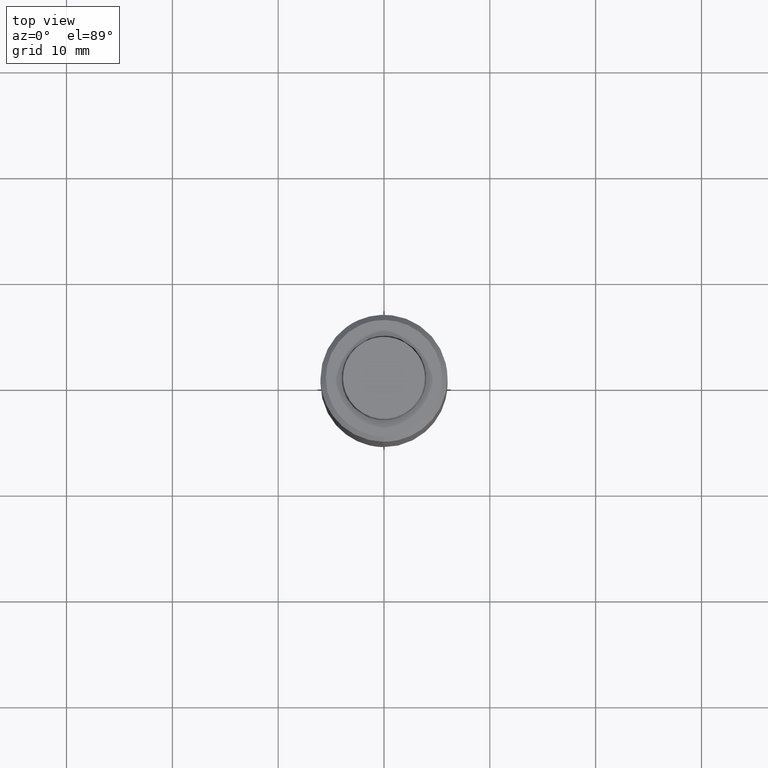
[diagram: clean part render]
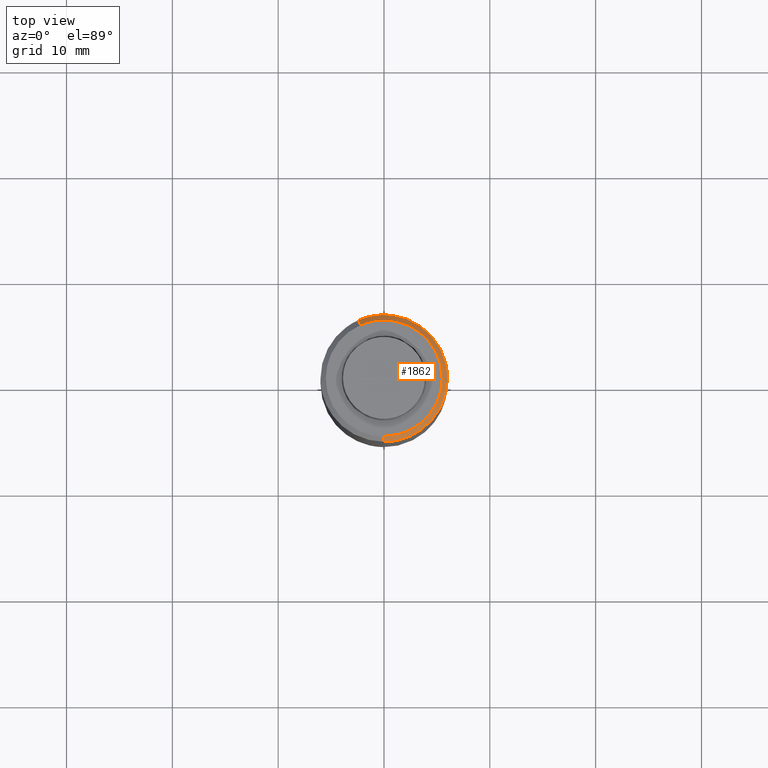
[diagram: same view with one face highlighted and labeled with its STEP entity id]
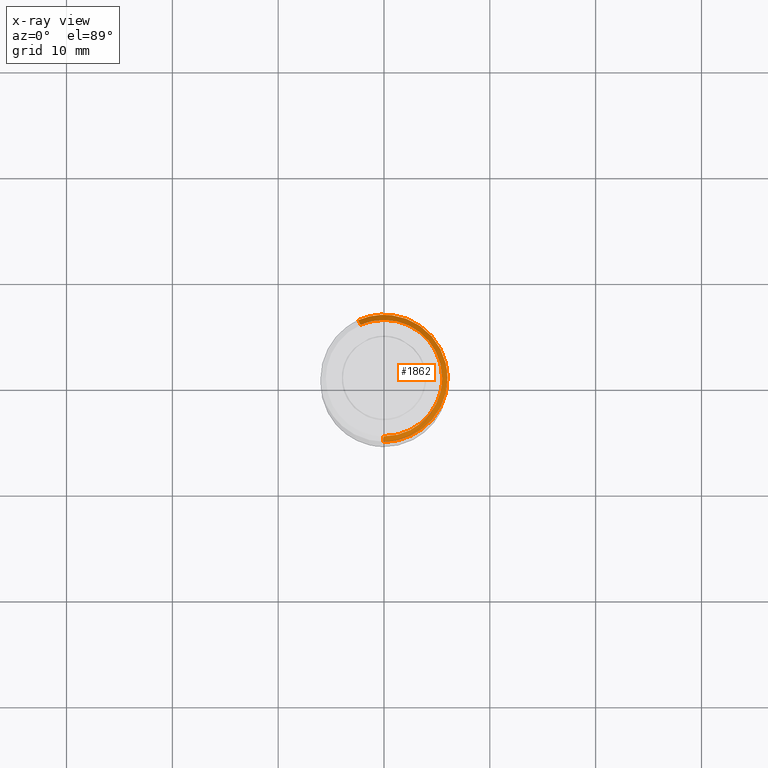
[diagram: x-ray of the same camera — body ghosted, the highlighted face saturated]
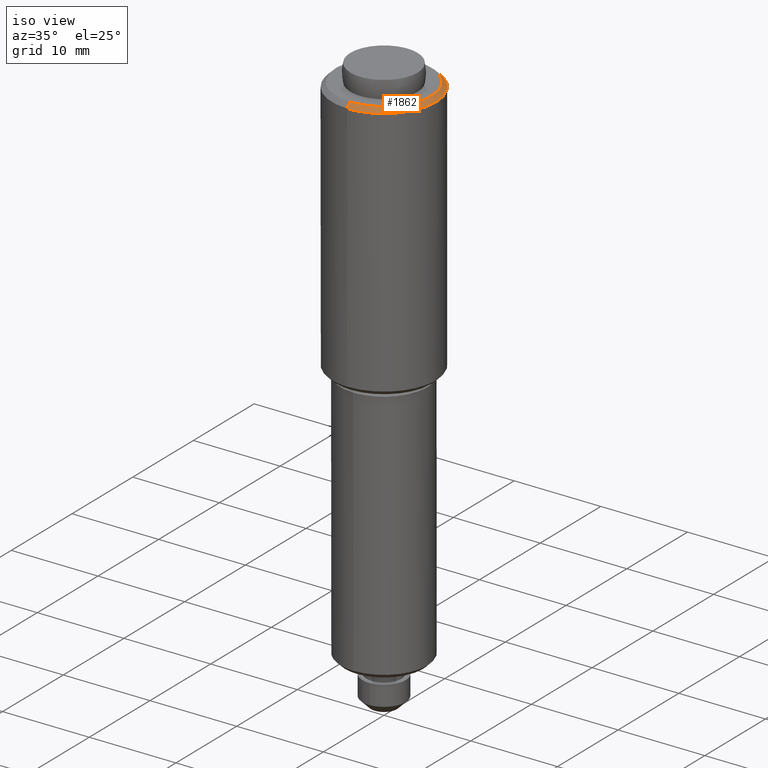
[diagram: same view with one face highlighted and labeled with its STEP entity id]
A machine part, top view. The second image highlights one B-rep face of the part: STEP entity #1862.
The next image is the same camera in x-ray: the body ghosted, the highlighted face saturated — about 0% of this face is hidden behind the body in this view.
A second angle (iso view) of the same face is appended — the face is thin or edge-on in the first view.
In plain terms, the highlighted face is a freeform B-spline surface patch.
Its self-contained STEP definition (entity closure, byte-faithful):
#1741=CARTESIAN_POINT('',(-2.218132183033429,5.019217655032555,65.012500000000017));
#1742=CARTESIAN_POINT('',(-1.135599143609647,5.497619178731233,65.012500000000017));
#1743=CARTESIAN_POINT('',(0.047886863547326,5.487291052814561,65.012500000000017));
#1744=CARTESIAN_POINT('',(5.535177916361887,5.439404189267235,65.012500000000031));
#1745=CARTESIAN_POINT('',(5.487291052814561,-0.047886863547326,65.012500000000017));
#1746=CARTESIAN_POINT('',(5.439404189267235,-5.535177916361887,65.012500000000031));
#1747=CARTESIAN_POINT('',(-0.047886863547326,-5.487291052814561,65.012500000000017));
#1748=CARTESIAN_POINT('',(-2.430471602149588,5.499701987499015,64.487187500000033));
#1749=CARTESIAN_POINT('',(-1.244308833837900,6.023900376877513,64.487187500000005));
#1750=CARTESIAN_POINT('',(0.052471021726316,6.012583550524283,64.487187500000005));
#1751=CARTESIAN_POINT('',(6.065054572250600,5.960112528797968,64.487187500000005));
#1752=CARTESIAN_POINT('',(6.012583550524283,-0.052471021726316,64.487187500000005));
#1753=CARTESIAN_POINT('',(5.960112528797968,-6.065054572250600,64.487187500000005));
#1754=CARTESIAN_POINT('',(-0.052471021726316,-6.012583550524283,64.487187500000005));
#1762=(BOUNDED_SURFACE()B_SPLINE_SURFACE(2,1,((#1741,#1748),(#1742,#1749),(#1743,#1750),(#1744,#1751),(#1745,#1752),(#1746,#1753),(#1747,#1754)),.UNSPECIFIED.,.F.,.F.,.U.)B_SPLINE_SURFACE_WITH_KNOTS((3,2,2,3),(2,2),(0.0,2.789459103767252,12.751813045793149,22.714166987819041),(0.0,1.0),.UNSPECIFIED.)GEOMETRIC_REPRESENTATION_ITEM()RATIONAL_B_SPLINE_SURFACE(((0.881905454174416,0.881905454174416),(0.917989898732233,0.917989898732233),(1.0,1.0),(0.707106781186548,0.707106781186548),(1.0,1.0),(0.707106781186548,0.707106781186548),(1.0,1.0)))REPRESENTATION_ITEM('')SURFACE());
#1763=CARTESIAN_POINT('',(-2.425292591935195,5.487982857436114,64.499999999999304));
#1764=VERTEX_POINT('',#1763);
#1765=CARTESIAN_POINT('',(0.744758561494347,5.953598465213299,64.500000000000000));
#1766=VERTEX_POINT('',#1765);
#1767=CARTESIAN_POINT('',(-2.425292591935196,5.487982857436114,64.499999999999304));
#1768=CARTESIAN_POINT('',(-1.266693703520049,6.0,64.500000000000014));
#1769=CARTESIAN_POINT('',(0.0,6.0,64.500000000000000));
#1770=CARTESIAN_POINT('',(0.373824784392168,5.999999999999999,64.499999999999986));
#1771=CARTESIAN_POINT('',(0.744758561494347,5.953598465213299,64.499999999999986));
#1779=(BOUNDED_CURVE()B_SPLINE_CURVE(2,(#1767,#1768,#1769,#1770,#1771),.UNSPECIFIED.,.F.,.U.)B_SPLINE_CURVE_WITH_KNOTS((3,2,3),(0.181361578459497,0.250000000000000,0.271473661255216),.UNSPECIFIED.)CURVE()GEOMETRIC_REPRESENTATION_ITEM()RATIONAL_B_SPLINE_CURVE((0.883326595751424,0.919585087122910,1.0,0.974842040941000,0.954005949807644))REPRESENTATION_ITEM(''));
#1780=EDGE_CURVE('',#1764,#1766,#1779,.T.);
#1781=ORIENTED_EDGE('',*,*,#1780,.F.);
#1782=CARTESIAN_POINT('',(-2.223184875934811,5.030650952651706,64.999999999999872));
#1783=VERTEX_POINT('',#1782);
#1784=CARTESIAN_POINT('',(-2.223184875934811,5.030650952651706,64.999999999999872));
#1785=CARTESIAN_POINT('',(-2.425292591935195,5.487982857436114,64.499999999999304));
#1786=QUASI_UNIFORM_CURVE('',1,(#1784,#1785),.UNSPECIFIED.,.F.,.U.);
#1787=EDGE_CURVE('',#1783,#1764,#1786,.T.);
#1788=ORIENTED_EDGE('',*,*,#1787,.F.);
#1789=CARTESIAN_POINT('',(5.499999999999940,0.0,65.0));
#1790=VERTEX_POINT('',#1789);
#1791=CARTESIAN_POINT('',(5.499999999999940,0.0,65.0));
#1792=CARTESIAN_POINT('',(5.499999999999940,5.499999999999940,64.999999999999986));
#1793=CARTESIAN_POINT('',(0.0,5.499999999999940,65.0));
#1794=CARTESIAN_POINT('',(-1.161135894887023,5.499999999999941,65.0));
#1795=CARTESIAN_POINT('',(-2.223184875934811,5.030650952651706,64.999999999999872));
#1803=(BOUNDED_CURVE()B_SPLINE_CURVE(2,(#1791,#1792,#1793,#1794,#1795),.UNSPECIFIED.,.F.,.U.)B_SPLINE_CURVE_WITH_KNOTS((3,2,3),(0.0,0.250000000000000,0.318638421540158),.UNSPECIFIED.)CURVE()GEOMETRIC_REPRESENTATION_ITEM()RATIONAL_B_SPLINE_CURVE((1.0,0.707106781186547,1.0,0.919585087123314,0.883326595751789))REPRESENTATION_ITEM(''));
#1804=EDGE_CURVE('',#1790,#1783,#1803,.T.);
#1805=ORIENTED_EDGE('',*,*,#1804,.F.);
#1806=CARTESIAN_POINT('',(-0.047995945447203,-5.499790576879205,64.999999999971877));
#1807=VERTEX_POINT('',#1806);
#1808=CARTESIAN_POINT('',(-0.047995945447203,-5.499790576879205,64.999999999971877));
#1809=CARTESIAN_POINT('',(-0.023998429719772,-5.499999999999940,65.0));
#1810=CARTESIAN_POINT('',(0.0,-5.499999999999940,65.0));
#1811=CARTESIAN_POINT('',(5.499999999999940,-5.499999999999940,64.999999999999986));
#1812=CARTESIAN_POINT('',(5.499999999999940,0.0,65.0));
#1820=(BOUNDED_CURVE()B_SPLINE_CURVE(2,(#1808,#1809,#1810,#1811,#1812),.UNSPECIFIED.,.F.,.U.)B_SPLINE_CURVE_WITH_KNOTS((3,2,3),(0.748460105651824,0.750000000000000,1.0),.UNSPECIFIED.)CURVE()GEOMETRIC_REPRESENTATION_ITEM()RATIONAL_B_SPLINE_CURVE((0.996414028069883,0.998195901550920,1.0,0.707106781186547,1.0))REPRESENTATION_ITEM(''));
#1821=EDGE_CURVE('',#1807,#1790,#1820,.T.);
#1822=ORIENTED_EDGE('',*,*,#1821,.F.);
#1823=CARTESIAN_POINT('',(-0.052359213022021,-5.999771538384714,64.500000000000028));
#1824=VERTEX_POINT('',#1823);
#1825=CARTESIAN_POINT('',(-0.047995945447203,-5.499790576879205,64.999999999971877));
#1826=CARTESIAN_POINT('',(-0.052359213022021,-5.999771538384714,64.500000000000028));
#1827=QUASI_UNIFORM_CURVE('',1,(#1825,#1826),.UNSPECIFIED.,.F.,.U.);
#1828=EDGE_CURVE('',#1807,#1824,#1827,.T.);
#1829=ORIENTED_EDGE('',*,*,#1828,.T.);
#1830=CARTESIAN_POINT('',(6.0,0.0,64.500000000000000));
#1831=VERTEX_POINT('',#1830);
#1832=CARTESIAN_POINT('',(6.0,0.0,64.500000000000000));
#1833=CARTESIAN_POINT('',(6.0,-6.0,64.500000000000000));
#1834=CARTESIAN_POINT('',(0.0,-6.0,64.500000000000000));
#1835=CARTESIAN_POINT('',(-0.026180104987775,-6.0,64.499999999999986));
#1836=CARTESIAN_POINT('',(-0.052359213022021,-5.999771538384714,64.500000000000028));
#1844=(BOUNDED_CURVE()B_SPLINE_CURVE(2,(#1832,#1833,#1834,#1835,#1836),.UNSPECIFIED.,.F.,.U.)B_SPLINE_CURVE_WITH_KNOTS((3,2,3),(0.500000000000000,0.750000000000000,0.751539894338719),.UNSPECIFIED.)CURVE()GEOMETRIC_REPRESENTATION_ITEM()RATIONAL_B_SPLINE_CURVE((1.0,0.707106781186548,1.0,0.998195901562000,0.996414028091769))REPRESENTATION_ITEM(''));
#1845=EDGE_CURVE('',#1831,#1824,#1844,.T.);
#1846=ORIENTED_EDGE('',*,*,#1845,.F.);
#1847=CARTESIAN_POINT('',(0.744758561494347,5.953598465213299,64.499999999999986));
#1848=CARTESIAN_POINT('',(6.0,5.296200073825249,64.500000000000000));
#1849=CARTESIAN_POINT('',(6.0,0.0,64.500000000000000));
#1857=(BOUNDED_CURVE()B_SPLINE_CURVE(2,(#1847,#1848,#1849),.UNSPECIFIED.,.F.,.U.)B_SPLINE_CURVE_WITH_KNOTS((3,3),(0.271473661255216,0.500000000000000),.UNSPECIFIED.)CURVE()GEOMETRIC_REPRESENTATION_ITEM()RATIONAL_B_SPLINE_CURVE((0.954005949807644,0.732264740245548,1.0))REPRESENTATION_ITEM(''));
#1858=EDGE_CURVE('',#1766,#1831,#1857,.T.);
#1859=ORIENTED_EDGE('',*,*,#1858,.F.);
#1860=EDGE_LOOP('',(#1781,#1788,#1805,#1822,#1829,#1846,#1859));
#1861=FACE_OUTER_BOUND('',#1860,.T.);
#1862=ADVANCED_FACE('',(#1861),#1762,.T.);